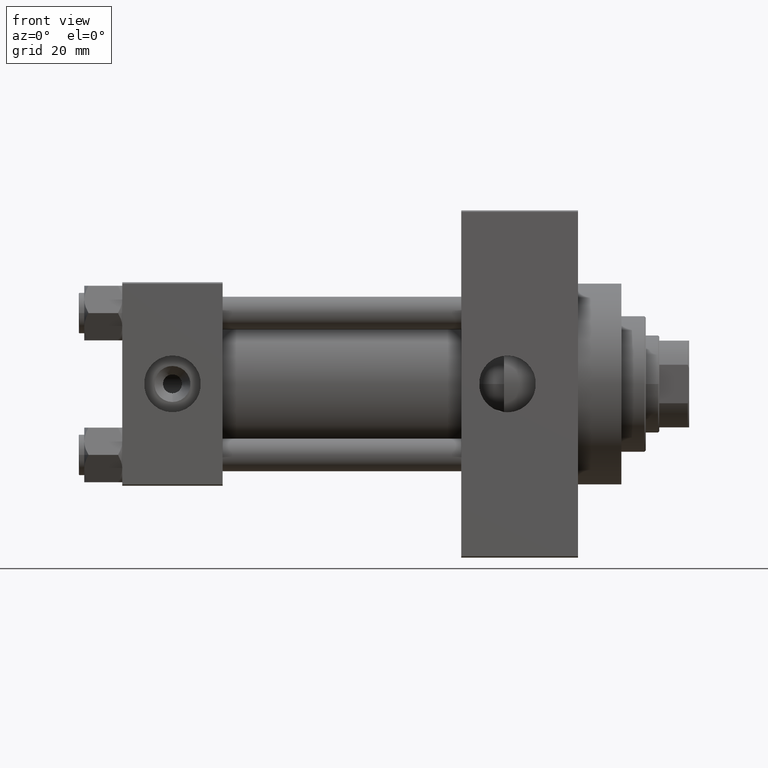
[diagram: clean part render]
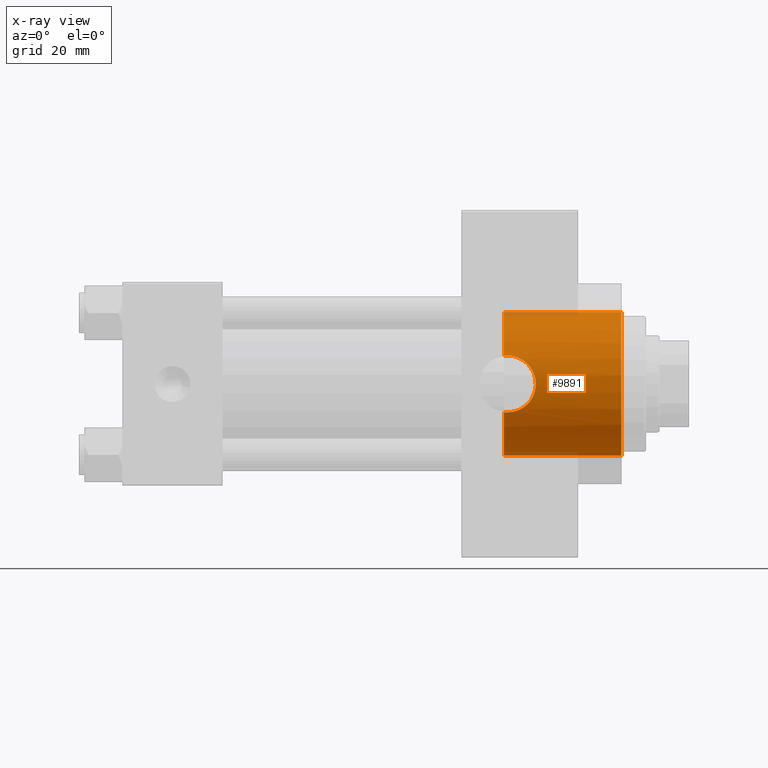
[diagram: x-ray — body ghosted, one internal face saturated and labeled with its STEP entity id]
A machine part, front view, then the same camera in x-ray: the body is ghosted and one INTERNAL B-rep face — a face not visible from any outside direction — is saturated and labeled: STEP entity #9891.
In plain terms, the highlighted cylindrical surface (partial cylindrical patch) has radius 26.5 mm, axis along (1, 0, 0).
Its self-contained STEP definition (entity closure, byte-faithful):
#729 = VERTEX_POINT ( 'NONE', #28983 ) ;
#883 = CARTESIAN_POINT ( 'NONE',  ( 144.7286532048194374, -24.48994387988090438, 10.12445329003760008 ) ) ;
#1122 = CARTESIAN_POINT ( 'NONE',  ( 142.0000000000000284, -24.33967132070604933, -10.47999999999998444 ) ) ;
#1350 = CARTESIAN_POINT ( 'NONE',  ( 150.3132647636414845, -25.71940794313461254, -6.390292897823897533 ) ) ;
#1563 = EDGE_LOOP ( 'NONE', ( #3337, #21342, #7152, #28109, #45556, #20238, #28597, #41446 ) ) ;
#1675 = CIRCLE ( 'NONE', #46692, 26.50000000000000355 ) ;
#3337 = ORIENTED_EDGE ( 'NONE', *, *, #6839, .F. ) ;
#3371 = EDGE_CURVE ( 'NONE', #44844, #18611, #6895, .T. ) ;
#3927 = EDGE_CURVE ( 'NONE', #16968, #4321, #15217, .T. ) ;
#4001 = CARTESIAN_POINT ( 'NONE',  ( 152.4626037639855838, -26.49310609510638770, -0.6963515910539429532 ) ) ;
#4178 = CARTESIAN_POINT ( 'NONE',  ( 140.7400000000000091, -24.37226292324946186, 10.40398000767012654 ) ) ;
#4229 = CARTESIAN_POINT ( 'NONE',  ( 150.5155153844950178, -25.78569419426081311, -6.118106053452856408 ) ) ;
#4321 = VERTEX_POINT ( 'NONE', #39257 ) ;
#4460 = CARTESIAN_POINT ( 'NONE',  ( 148.3864792908362631, -25.16230905708523480, 8.316254619809530624 ) ) ;
#4693 = CARTESIAN_POINT ( 'NONE',  ( 146.3489237122697659, -24.72318467201153425, -9.541179571695405315 ) ) ;
#6164 = CARTESIAN_POINT ( 'NONE',  ( 140.7400000000000091, 0.000000000000000000, 0.000000000000000000 ) ) ;
#6449 = DIRECTION ( 'NONE',  ( 0.000000000000000000, 0.000000000000000000, -1.000000000000000000 ) ) ;
#6765 = CARTESIAN_POINT ( 'NONE',  ( 184.0000000000000000, 0.000000000000000000, 0.000000000000000000 ) ) ;
#6839 = EDGE_CURVE ( 'NONE', #16968, #18611, #1675, .T. ) ;
#6870 = EDGE_CURVE ( 'NONE', #729, #24720, #38648, .T. ) ;
#6895 = B_SPLINE_CURVE_WITH_KNOTS ( 'NONE', 3,
 ( #29958, #26364, #40935, #4178 ),
 .UNSPECIFIED., .F., .F.,
 ( 4, 4 ),
 ( 0.03437190755806009829, 0.03561776921873222035 ),
 .UNSPECIFIED. ) ;
#7152 = ORIENTED_EDGE ( 'NONE', *, *, #34914, .T. ) ;
#7815 = CARTESIAN_POINT ( 'NONE',  ( 151.0679913760332624, -25.97354752128885025, 5.264851845784581208 ) ) ;
#8041 = CARTESIAN_POINT ( 'NONE',  ( 148.9276451403627561, -25.30216499957183984, -7.893159106980509598 ) ) ;
#8279 = CARTESIAN_POINT ( 'NONE',  ( 148.4049404352971067, -25.16229795609818609, -8.322848467437516717 ) ) ;
#8510 = CARTESIAN_POINT ( 'NONE',  ( 149.8811664359166400, -25.58300917221410486, -6.916171625962123315 ) ) ;
#8754 = CARTESIAN_POINT ( 'NONE',  ( 151.9191483855533988, -26.28308039691835774, 3.400110870430087306 ) ) ;
#9188 = AXIS2_PLACEMENT_3D ( 'NONE', #6765, #17996, #17531 ) ;
#9497 = VERTEX_POINT ( 'NONE', #36312 ) ;
#9891 = ADVANCED_FACE ( 'NONE', ( #14937 ), #29733, .F. ) ;
#10798 = CARTESIAN_POINT ( 'NONE',  ( 141.1611364518797984, -24.35049096341793273, -10.45498279016080012 ) ) ;
#11170 = DIRECTION ( 'NONE',  ( 1.000000000000000000, -0.000000000000000000, -0.000000000000000000 ) ) ;
#11393 = CARTESIAN_POINT ( 'NONE',  ( 144.7461877943154036, -24.48462605612511567, -10.13781324604277145 ) ) ;
#11626 = CARTESIAN_POINT ( 'NONE',  ( 151.3916535229813576, -26.08830885934474253, 4.663043711798783519 ) ) ;
#12089 = CARTESIAN_POINT ( 'NONE',  ( 142.6982936874238703, -24.33967132070605288, 10.47999999999998799 ) ) ;
#12326 = CARTESIAN_POINT ( 'NONE',  ( 142.6904960883778131, -24.33967132070604578, -10.47999999999998622 ) ) ;
#12504 = CARTESIAN_POINT ( 'NONE',  ( 142.0000000000000284, -24.33967132070604933, 10.47999999999998799 ) ) ;
#12809 = CARTESIAN_POINT ( 'NONE',  ( 142.0000000000000284, -24.33967132070604933, 10.47999999999998799 ) ) ;
#14937 = FACE_OUTER_BOUND ( 'NONE', #1563, .T. ) ;
#14983 = CARTESIAN_POINT ( 'NONE',  ( 151.4057128516256228, -26.09263577897064224, -4.673612418766440513 ) ) ;
#15211 = CARTESIAN_POINT ( 'NONE',  ( 143.3786097457406470, -24.36915941385105100, -10.41231194222668321 ) ) ;
#15217 = LINE ( 'NONE', #26665, #23817 ) ;
#15443 = CARTESIAN_POINT ( 'NONE',  ( 144.3947302122628287, -24.45488967133339386, 10.20851256290625741 ) ) ;
#16048 = CARTESIAN_POINT ( 'NONE',  ( 140.7400000000000091, 3.245314017740486554E-15, 26.50000000000000355 ) ) ;
#16868 = AXIS2_PLACEMENT_3D ( 'NONE', #45608, #31769, #6449 ) ;
#16968 = VERTEX_POINT ( 'NONE', #16048 ) ;
#17531 = DIRECTION ( 'NONE',  ( 0.000000000000000000, 0.000000000000000000, -1.000000000000000000 ) ) ;
#17618 = CIRCLE ( 'NONE', #16868, 26.50000000000000355 ) ;
#17996 = DIRECTION ( 'NONE',  ( 1.000000000000000000, 0.000000000000000000, 0.000000000000000000 ) ) ;
#18090 = CARTESIAN_POINT ( 'NONE',  ( 140.7400000000000091, -24.37226292324946186, 10.40398000767012654 ) ) ;
#18462 = VECTOR ( 'NONE', #38410, 1000.000000000000000 ) ;
#18575 = CARTESIAN_POINT ( 'NONE',  ( 151.5385175848663266, -26.14168889184969657, 4.354785931857517056 ) ) ;
#18611 = VERTEX_POINT ( 'NONE', #18090 ) ;
#19034 = CARTESIAN_POINT ( 'NONE',  ( 146.6659000583122463, -24.77500862834707362, 9.408993987884874954 ) ) ;
#19266 = CARTESIAN_POINT ( 'NONE',  ( 148.9147507852791819, -25.30155050139244111, 7.882476147205575323 ) ) ;
#19505 = CARTESIAN_POINT ( 'NONE',  ( 145.4024368383432204, -24.56844862672226881, -9.935854460437951730 ) ) ;
#20238 = ORIENTED_EDGE ( 'NONE', *, *, #25760, .T. ) ;
#20726 = DIRECTION ( 'NONE',  ( 1.000000000000000000, 0.000000000000000000, 0.000000000000000000 ) ) ;
#21342 = ORIENTED_EDGE ( 'NONE', *, *, #3927, .T. ) ;
#22396 = CARTESIAN_POINT ( 'NONE',  ( 149.8850942087586304, -25.58093385762821725, 6.936447548980003042 ) ) ;
#22624 = CARTESIAN_POINT ( 'NONE',  ( 152.2075249541715039, -26.39335609204158573, 2.399236127628234794 ) ) ;
#22856 = CARTESIAN_POINT ( 'NONE',  ( 152.4800680225664280, -26.50002690099940494, -0.3451042088078350445 ) ) ;
#23088 = CARTESIAN_POINT ( 'NONE',  ( 152.1219222710722647, -26.36027543327035261, 2.738055544399092600 ) ) ;
#23817 = VECTOR ( 'NONE', #11170, 1000.000000000000000 ) ;
#24667 = AXIS2_PLACEMENT_3D ( 'NONE', #25916, #40472, #41169 ) ;
#24720 = VERTEX_POINT ( 'NONE', #43038 ) ;
#25604 = CARTESIAN_POINT ( 'NONE',  ( 140.7400000000000091, -24.37226292324946542, -10.40398000767012299 ) ) ;
#25760 = EDGE_CURVE ( 'NONE', #9497, #35756, #36300, .T. ) ;
#25916 = CARTESIAN_POINT ( 'NONE',  ( 140.7400000000000091, 0.000000000000000000, 0.000000000000000000 ) ) ;
#26197 = CARTESIAN_POINT ( 'NONE',  ( 152.3935590552674171, -26.46591511510092332, -1.387412420731378715 ) ) ;
#26364 = CARTESIAN_POINT ( 'NONE',  ( 141.5796744023297435, -24.33967132070604933, 10.47999999999998799 ) ) ;
#26425 = CARTESIAN_POINT ( 'NONE',  ( 147.2635990777562256, -24.90054338428140568, -9.068796382691630242 ) ) ;
#26657 = CARTESIAN_POINT ( 'NONE',  ( 145.3904700717597223, -24.57248644795726022, 9.922439993611760656 ) ) ;
#26665 = CARTESIAN_POINT ( 'NONE',  ( 140.7400000000000091, 3.245314017740486554E-15, 26.50000000000000355 ) ) ;
#26900 = CARTESIAN_POINT ( 'NONE',  ( 149.6501220615577097, -25.51256335955728005, -7.170912732211439433 ) ) ;
#28109 = ORIENTED_EDGE ( 'NONE', *, *, #6870, .F. ) ;
#28597 = ORIENTED_EDGE ( 'NONE', *, *, #45697, .T. ) ;
#28716 = CARTESIAN_POINT ( 'NONE',  ( 141.5811236364006049, -24.33967132070604933, -10.47999999999998444 ) ) ;
#28952 = CARTESIAN_POINT ( 'NONE',  ( 142.0000000000000284, -24.33967132070604933, -10.47999999999998444 ) ) ;
#28983 = CARTESIAN_POINT ( 'NONE',  ( 140.7400000000000091, 0.000000000000000000, -26.50000000000000355 ) ) ;
#29554 = CARTESIAN_POINT ( 'NONE',  ( 150.3165002292777501, -25.71874665637611912, 6.413821170274206729 ) ) ;
#29733 = CYLINDRICAL_SURFACE ( 'NONE', #24667, 26.50000000000000355 ) ;
#29777 = CIRCLE ( 'NONE', #9188, 26.50000000000000355 ) ;
#29781 = CARTESIAN_POINT ( 'NONE',  ( 151.0816778311289568, -25.97633853132261450, -5.273786452924785983 ) ) ;
#29958 = CARTESIAN_POINT ( 'NONE',  ( 142.0000000000000284, -24.33967132070604933, 10.47999999999998799 ) ) ;
#30019 = CARTESIAN_POINT ( 'NONE',  ( 143.3839948142214951, -24.36973996242157980, 10.41091756284551728 ) ) ;
#30247 = CARTESIAN_POINT ( 'NONE',  ( 152.1391112229687792, -26.36675217432884466, -2.738755341944245636 ) ) ;
#31003 = DIRECTION ( 'NONE',  ( 0.000000000000000000, 0.000000000000000000, -1.000000000000000000 ) ) ;
#31769 = DIRECTION ( 'NONE',  ( 1.000000000000000000, 0.000000000000000000, 0.000000000000000000 ) ) ;
#32254 = CARTESIAN_POINT ( 'NONE',  ( 142.0000000000000284, -24.33967132070604933, -10.47999999999998444 ) ) ;
#33594 = CARTESIAN_POINT ( 'NONE',  ( 145.7173844672076655, -24.61993612039166024, 9.804529592362708712 ) ) ;
#34062 = CARTESIAN_POINT ( 'NONE',  ( 147.5577538920436496, -24.96463143003449758, -8.891425016462831010 ) ) ;
#34914 = EDGE_CURVE ( 'NONE', #4321, #24720, #29777, .T. ) ;
#35756 = VERTEX_POINT ( 'NONE', #32254 ) ;
#36300 = B_SPLINE_CURVE_WITH_KNOTS ( 'NONE', 3,
 ( #25604, #10798, #28716, #28952 ),
 .UNSPECIFIED., .F., .F.,
 ( 4, 4 ),
 ( 0.000000000000000000, 0.001255586767787714641 ),
 .UNSPECIFIED. ) ;
#36312 = CARTESIAN_POINT ( 'NONE',  ( 140.7400000000000091, -24.37226292324946542, -10.40398000767012299 ) ) ;
#36956 = CARTESIAN_POINT ( 'NONE',  ( 149.1663633815065850, -25.37171319999175623, 7.654298772871978684 ) ) ;
#37183 = CARTESIAN_POINT ( 'NONE',  ( 151.8022638174866472, -26.23907308479209988, 3.723318718764343949 ) ) ;
#37411 = CARTESIAN_POINT ( 'NONE',  ( 148.1110651716822701, -25.09360970262139645, 8.520611273842991551 ) ) ;
#37650 = CARTESIAN_POINT ( 'NONE',  ( 150.8904987776702171, -25.91192981801192730, 5.559420023815748735 ) ) ;
#38410 = DIRECTION ( 'NONE',  ( 1.000000000000000000, -0.000000000000000000, -0.000000000000000000 ) ) ;
#38648 = LINE ( 'NONE', #45569, #18462 ) ;
#38685 = EDGE_CURVE ( 'NONE', #9497, #729, #17618, .T. ) ;
#39257 = CARTESIAN_POINT ( 'NONE',  ( 184.0000000000000000, 3.245314017740486554E-15, 26.50000000000000355 ) ) ;
#40472 = DIRECTION ( 'NONE',  ( 1.000000000000000000, -0.000000000000000000, -0.000000000000000000 ) ) ;
#40525 = CARTESIAN_POINT ( 'NONE',  ( 146.6580558779860723, -24.77960996754317691, -9.394203453174519325 ) ) ;
#40763 = CARTESIAN_POINT ( 'NONE',  ( 152.4114040688937735, -26.47265107862980926, 1.382412405478187001 ) ) ;
#40935 = CARTESIAN_POINT ( 'NONE',  ( 141.1580741051582493, -24.35064928096444703, 10.45461191700780645 ) ) ;
#40993 = CARTESIAN_POINT ( 'NONE',  ( 151.9389570606565769, -26.28956209411558476, -3.395175965175881938 ) ) ;
#41169 = DIRECTION ( 'NONE',  ( 0.000000000000000000, 0.000000000000000000, -1.000000000000000000 ) ) ;
#41446 = ORIENTED_EDGE ( 'NONE', *, *, #3371, .T. ) ;
#41469 = CARTESIAN_POINT ( 'NONE',  ( 152.3421836049516855, -26.44572692659851754, -1.728475508984261610 ) ) ;
#42443 = B_SPLINE_CURVE_WITH_KNOTS ( 'NONE', 3,
 ( #1122, #12326, #15211, #11393, #19505, #4693, #40525, #26425, #34062, #8279, #8041, #26900, #8510, #1350, #4229, #29781, #14983, #40993, #30247, #41469, #26197, #4001, #22856, #44805, #40763, #22624, #23088, #8754, #37183, #18575, #11626, #7815, #37650, #29554, #22396, #36956, #19266, #4460, #37411, #44343, #19034, #33594, #26657, #883, #15443, #30019, #12089, #12809 ),
 .UNSPECIFIED., .F., .F.,
 ( 4, 2, 2, 2, 2, 2, 2, 2, 2, 2, 2, 2, 2, 2, 2, 2, 2, 2, 2, 2, 2, 2, 2, 4 ),
 ( 0.001255586767787714641, 0.003325356817179755085, 0.005395126866571796180, 0.006430011891267852289, 0.007464896915963908398, 0.009534666965355952095, 0.01056955199005197438, 0.01160443701474799492, 0.01367420706413999265, 0.01574397711353198864, 0.01677886213822798664, 0.01781374716292398463, 0.01988351721231598410, 0.02091840223701198556, 0.02195328726170798356, 0.02298817228640397808, 0.02402305731109997608, 0.02609282736049197207, 0.02712771238518797007, 0.02816259740988396806, 0.03023236745927596406, 0.03126725248397199675, 0.03230213750866803291, 0.03437190755806009829 ),
 .UNSPECIFIED. ) ;
#43038 = CARTESIAN_POINT ( 'NONE',  ( 184.0000000000000000, 0.000000000000000000, -26.50000000000000355 ) ) ;
#44343 = CARTESIAN_POINT ( 'NONE',  ( 147.2636119660473923, -24.89625137302611080, 9.087734872939162045 ) ) ;
#44805 = CARTESIAN_POINT ( 'NONE',  ( 152.4798633477533940, -26.49994595790487750, 0.6963870350870441372 ) ) ;
#44844 = VERTEX_POINT ( 'NONE', #12504 ) ;
#45556 = ORIENTED_EDGE ( 'NONE', *, *, #38685, .F. ) ;
#45569 = CARTESIAN_POINT ( 'NONE',  ( 140.7400000000000091, 0.000000000000000000, -26.50000000000000355 ) ) ;
#45608 = CARTESIAN_POINT ( 'NONE',  ( 140.7400000000000091, 0.000000000000000000, 0.000000000000000000 ) ) ;
#45697 = EDGE_CURVE ( 'NONE', #35756, #44844, #42443, .T. ) ;
#46692 = AXIS2_PLACEMENT_3D ( 'NONE', #6164, #20726, #31003 ) ;